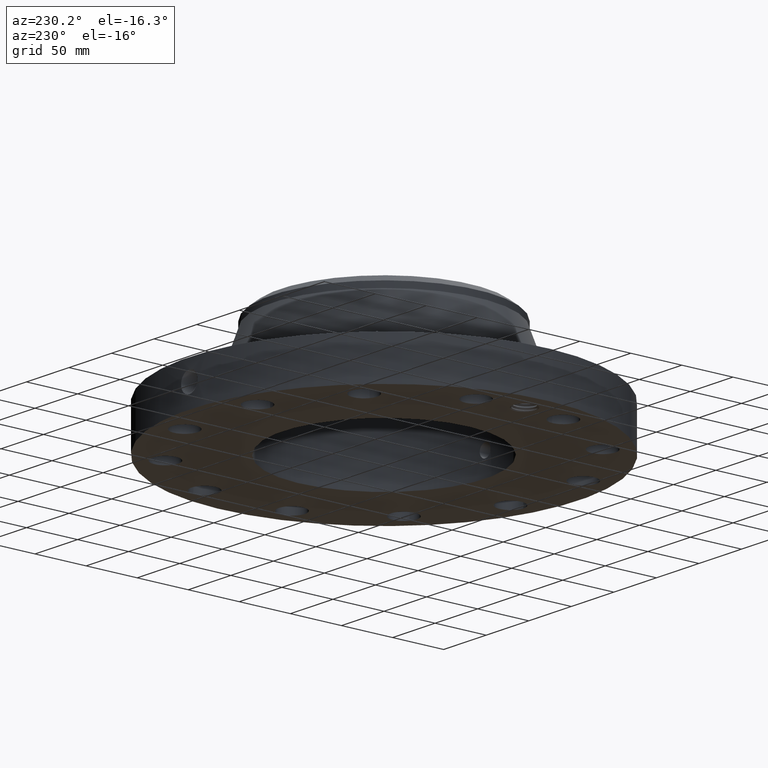
[diagram: clean part render]
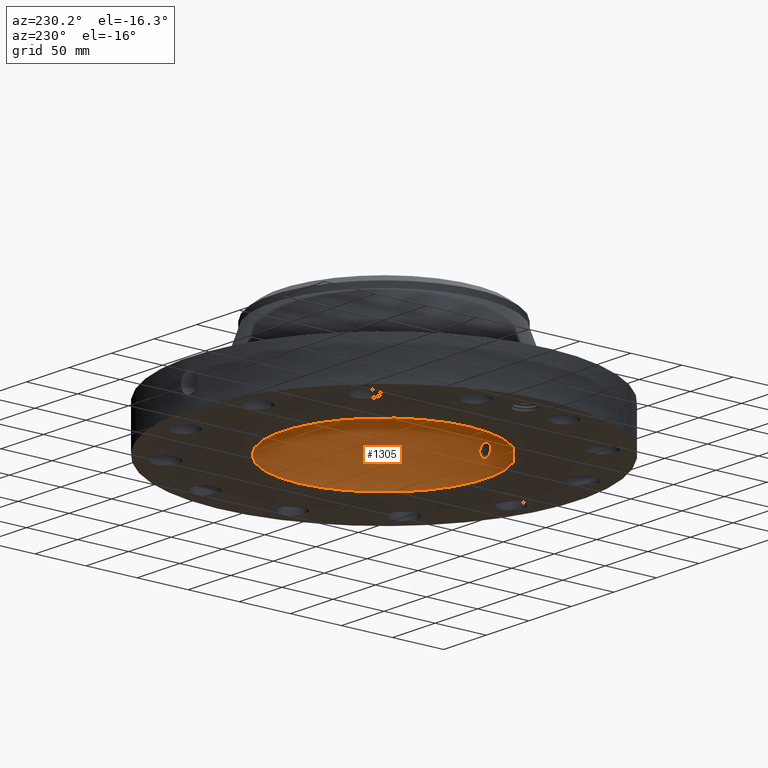
[diagram: same view with one face highlighted and labeled with its STEP entity id]
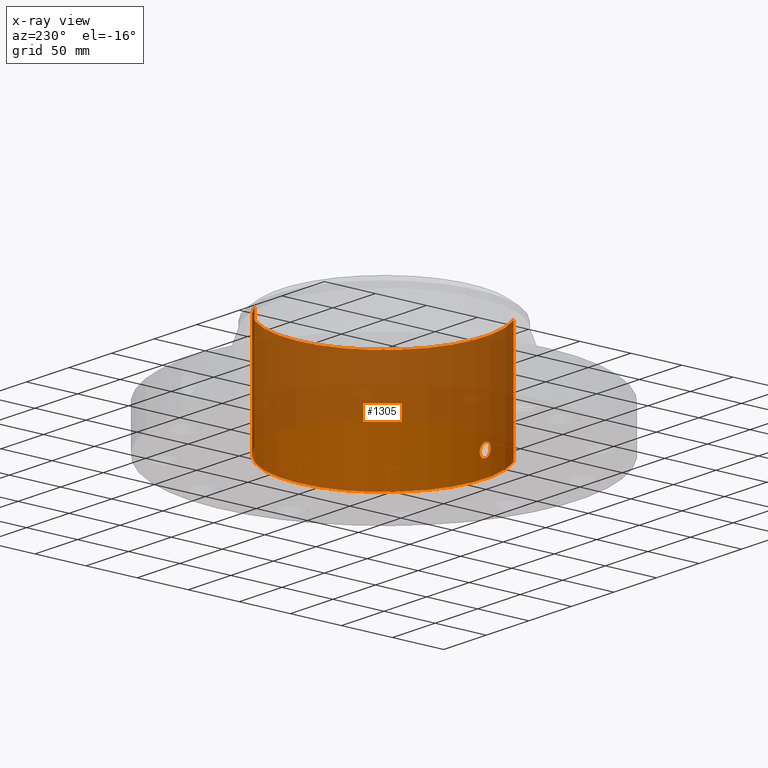
[diagram: x-ray of the same camera — body ghosted, the highlighted face saturated]
A machine part, auxiliary view. The second image highlights one B-rep face of the part: STEP entity #1305.
The next image is the same camera in x-ray: the body ghosted, the highlighted face saturated — about 59% of this face is hidden behind the body in this view.
In plain terms, the highlighted cylindrical surface (partial cylindrical patch) has radius 99.2251 mm, axis along (0, 0, -1).
Its self-contained STEP definition (entity closure, byte-faithful):
#214=AXIS2_PLACEMENT_3D('Circle Axis2P3D',#212,#213,$) ;
#1236=AXIS2_PLACEMENT_3D('Cylinder Axis2P3D',#1233,#1234,#1235) ;
#1240=AXIS2_PLACEMENT_3D('Circle Axis2P3D',#1238,#1239,$) ;
#212=CARTESIAN_POINT('Axis2P3D Location',(0.,0.,0.0600000000002)) ;
#216=CARTESIAN_POINT('Vertex',(1.87287586656,3.42827627804,0.0600000000002)) ;
#218=CARTESIAN_POINT('Vertex',(-1.87287586656,-3.42827627804,0.0600000000002)) ;
#1233=CARTESIAN_POINT('Axis2P3D Location',(0.,0.,2.25000000001)) ;
#1238=CARTESIAN_POINT('Axis2P3D Location',(0.,0.,4.44000000002)) ;
#1242=CARTESIAN_POINT('Vertex',(1.87287586656,3.42827627804,4.44000000002)) ;
#1244=CARTESIAN_POINT('Vertex',(-1.87287586656,-3.42827627804,4.44000000002)) ;
#1247=CARTESIAN_POINT('Line Origine',(1.87287586656,3.42827627804,2.25000000001)) ;
#1252=CARTESIAN_POINT('Line Origine',(-1.87287586656,-3.42827627804,2.25000000001)) ;
#1264=CARTESIAN_POINT('Control Point',(0.219395640473,-3.9003343194,0.820143615352)) ;
#1265=CARTESIAN_POINT('Control Point',(0.20692193024,-3.90103597147,0.797310641926)) ;
#1266=CARTESIAN_POINT('Control Point',(0.191479396033,-3.90185459808,0.776103160517)) ;
#1267=CARTESIAN_POINT('Control Point',(0.173348163027,-3.90272689318,0.757033071448)) ;
#1268=CARTESIAN_POINT('Control Point',(0.112157307947,-3.90524913857,0.707565510221)) ;
#1269=CARTESIAN_POINT('Control Point',(0.0350178515618,-3.90688782326,0.684034953902)) ;
#1270=CARTESIAN_POINT('Control Point',(-0.0195222473831,-3.90701082402,0.682387727679)) ;
#1271=CARTESIAN_POINT('Control Point',(-0.124096321571,-3.90520886894,0.707510491774)) ;
#1272=CARTESIAN_POINT('Control Point',(-0.203134450835,-3.90147590996,0.780377652697)) ;
#1273=CARTESIAN_POINT('Control Point',(-0.232123405634,-3.89963639919,0.826567325356)) ;
#1274=CARTESIAN_POINT('Control Point',(-0.255825809919,-3.89811972768,0.904733322362)) ;
#1275=CARTESIAN_POINT('Control Point',(-0.248308766751,-3.89860030722,0.984146441347)) ;
#1276=CARTESIAN_POINT('Control Point',(-0.242074371612,-3.89900483197,1.01075059307)) ;
#1277=CARTESIAN_POINT('Control Point',(-0.232331446878,-3.8996066742,1.03617754986)) ;
#1278=CARTESIAN_POINT('Control Point',(-0.219395640473,-3.9003343194,1.05985638466)) ;
#1279=CARTESIAN_POINT('Vertex',(0.219395640473,-3.9003343194,0.820143615352)) ;
#1281=CARTESIAN_POINT('Vertex',(-0.219395640473,-3.9003343194,1.05985638466)) ;
#1285=CARTESIAN_POINT('Control Point',(-0.219395640473,-3.9003343194,1.05985638466)) ;
#1286=CARTESIAN_POINT('Control Point',(-0.206921930245,-3.90103597147,1.08268935807)) ;
#1287=CARTESIAN_POINT('Control Point',(-0.191479396045,-3.90185459808,1.10389683947)) ;
#1288=CARTESIAN_POINT('Control Point',(-0.173348163012,-3.90272689318,1.12296692857)) ;
#1289=CARTESIAN_POINT('Control Point',(-0.11215730794,-3.90524913857,1.17243448979)) ;
#1290=CARTESIAN_POINT('Control Point',(-0.0350178515678,-3.90688782326,1.1959650461)) ;
#1291=CARTESIAN_POINT('Control Point',(0.019522247385,-3.90701082402,1.19761227233)) ;
#1292=CARTESIAN_POINT('Control Point',(0.124096321578,-3.90520886894,1.17248950823)) ;
#1293=CARTESIAN_POINT('Control Point',(0.203134450844,-3.90147590996,1.0996223473)) ;
#1294=CARTESIAN_POINT('Control Point',(0.23212340563,-3.89963639919,1.05343267467)) ;
#1295=CARTESIAN_POINT('Control Point',(0.255825809914,-3.89811972768,0.975266677671)) ;
#1296=CARTESIAN_POINT('Control Point',(0.248308766754,-3.89860030722,0.895853558697)) ;
#1297=CARTESIAN_POINT('Control Point',(0.242074371599,-3.89900483197,0.869249406904)) ;
#1298=CARTESIAN_POINT('Control Point',(0.23233144687,-3.8996066742,0.843822450132)) ;
#1299=CARTESIAN_POINT('Control Point',(0.219395640473,-3.9003343194,0.820143615352)) ;
#213=DIRECTION('Axis2P3D Direction',(0.,0.,-0.0393700787402)) ;
#1234=DIRECTION('Axis2P3D Direction',(0.,0.,-0.0393700787402)) ;
#1235=DIRECTION('Axis2P3D XDirection',(-0.0188750212049,-0.0345504945626,0.)) ;
#1239=DIRECTION('Axis2P3D Direction',(0.,0.,-0.0393700787402)) ;
#1248=DIRECTION('Vector Direction',(0.,0.,-0.0393700787402)) ;
#1253=DIRECTION('Vector Direction',(0.,0.,-0.0393700787402)) ;
#1249=VECTOR('Line Direction',#1248,0.0393700787402) ;
#1254=VECTOR('Line Direction',#1253,0.0393700787402) ;
#1258=ORIENTED_EDGE('',*,*,#1246,.F.) ;
#1259=ORIENTED_EDGE('',*,*,#1251,.T.) ;
#1260=ORIENTED_EDGE('',*,*,#220,.T.) ;
#1261=ORIENTED_EDGE('',*,*,#1256,.F.) ;
#1302=ORIENTED_EDGE('',*,*,#1283,.F.) ;
#1303=ORIENTED_EDGE('',*,*,#1300,.F.) ;
#1304=FACE_BOUND('',#1301,.T.) ;
#1305=ADVANCED_FACE('PartBody',(#1262,#1304),#1237,.F.) ;
#1263=B_SPLINE_CURVE_WITH_KNOTS('',5,(#1264,#1265,#1266,#1267,#1268,#1269,#1270,#1271,#1272,#1273,#1274,#1275,#1276,#1277,#1278),.UNSPECIFIED.,.F.,.U.,(6,3,3,3,6),(0.,4.67467122608,14.0213730174,23.3713190143,28.2191662752),.UNSPECIFIED.) ;
#1284=B_SPLINE_CURVE_WITH_KNOTS('',5,(#1285,#1286,#1287,#1288,#1289,#1290,#1291,#1292,#1293,#1294,#1295,#1296,#1297,#1298,#1299),.UNSPECIFIED.,.F.,.U.,(6,3,3,3,6),(0.,4.67467122425,14.0213730152,23.3713190133,28.2191662711),.UNSPECIFIED.) ;
#215=CIRCLE('generated circle',#214,3.90650000002) ;
#1241=CIRCLE('generated circle',#1240,3.90650000002) ;
#1237=CYLINDRICAL_SURFACE('generated cylinder',#1236,3.90650000002) ;
#220=EDGE_CURVE('',#217,#219,#215,.T.) ;
#1246=EDGE_CURVE('',#1243,#1245,#1241,.T.) ;
#1251=EDGE_CURVE('',#1243,#217,#1250,.T.) ;
#1256=EDGE_CURVE('',#1245,#219,#1255,.T.) ;
#1283=EDGE_CURVE('',#1280,#1282,#1263,.T.) ;
#1300=EDGE_CURVE('',#1282,#1280,#1284,.T.) ;
#1257=EDGE_LOOP('',(#1258,#1259,#1260,#1261)) ;
#1301=EDGE_LOOP('',(#1302,#1303)) ;
#1262=FACE_OUTER_BOUND('',#1257,.T.) ;
#1250=LINE('Line',#1247,#1249) ;
#1255=LINE('Line',#1252,#1254) ;
#217=VERTEX_POINT('',#216) ;
#219=VERTEX_POINT('',#218) ;
#1243=VERTEX_POINT('',#1242) ;
#1245=VERTEX_POINT('',#1244) ;
#1280=VERTEX_POINT('',#1279) ;
#1282=VERTEX_POINT('',#1281) ;